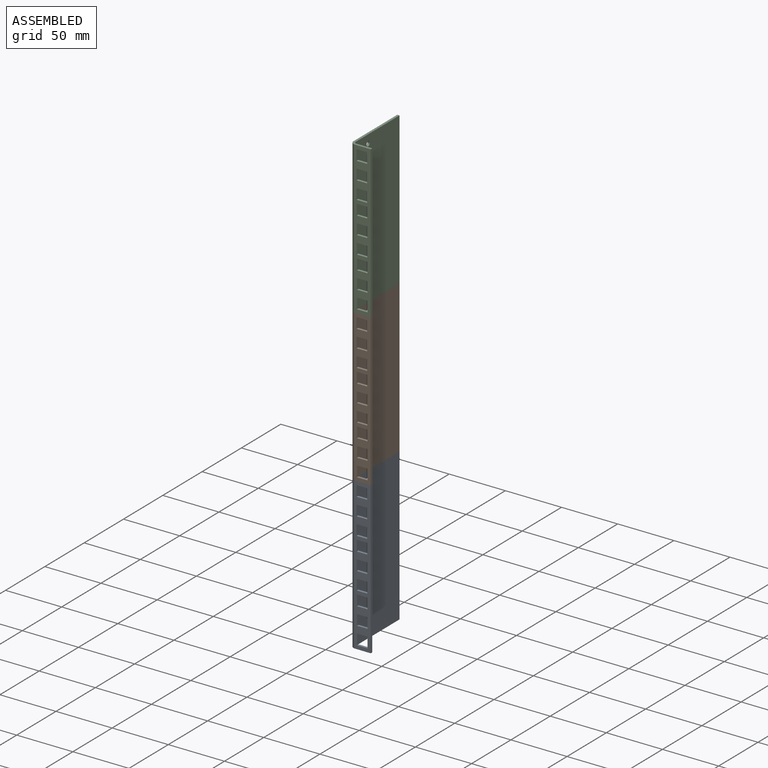
[diagram: assembled view]
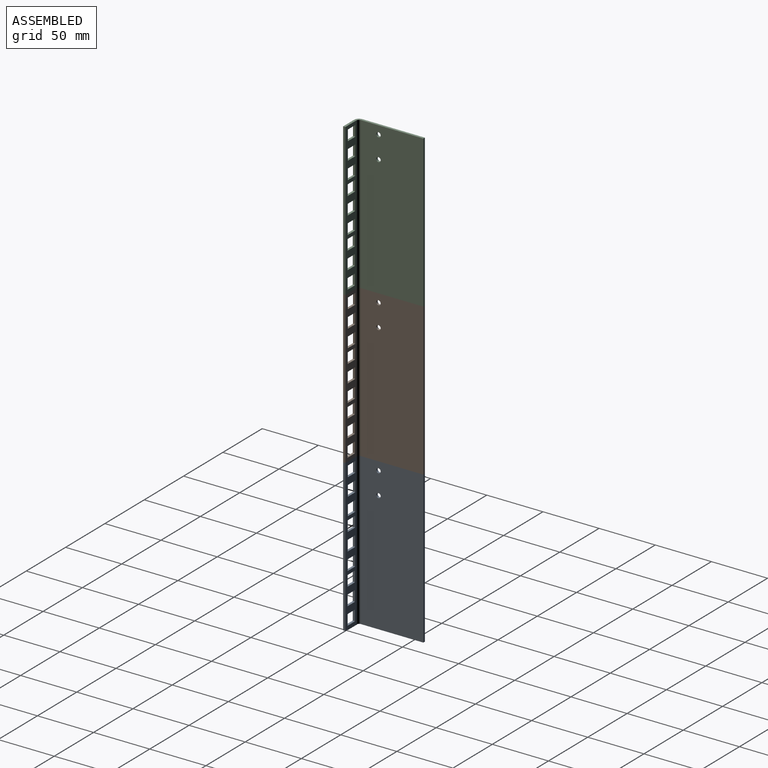
[diagram: assembled view, second angle]
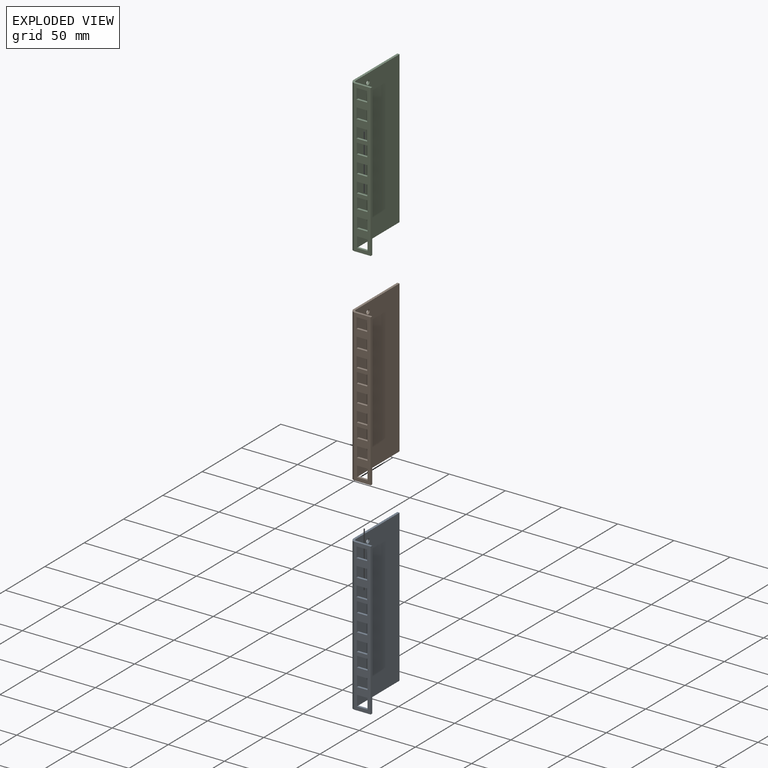
[diagram: exploded view]
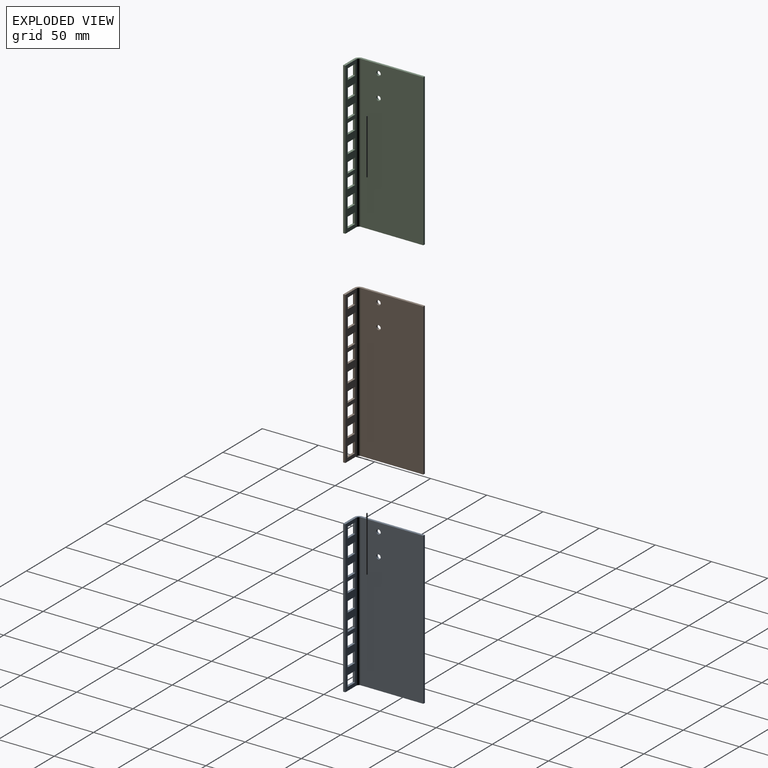
[diagram: exploded view, second angle]
ASSEMBLY  parts=3 mates=2
PART A: 52 faces, bbox 18.3x60x135.2 mm
  f0: plane 55.7x2mm, normal (0,0,-1), area 111.4mm2, adj f4,f5,f6,f48
  f1: plane 55.7x2mm, normal (0,0,1), area 111.4mm2, adj f4,f5,f6,f49
  f2: cylinder r=2mm len=4mm, axis (1,0,0), area 25.1mm2, adj f5,f6
  f3: cylinder r=2mm len=4mm, axis (1,0,0), area 25.1mm2, adj f5,f6
  f4: plane 135.2x2mm, normal (0,1,0), area 270.4mm2, adj f0,f1,f5,f6
  f5: plane 135.2x55.7mm, normal (-1,0,0), area 7505.5mm2, adj f0,f1,f2,f3,f4,f50
  f6: plane 135.2x55.7mm, normal (1,0,0), area 7505.5mm2, adj f0,f1,f2,f3,f4,f51
  f7: plane 9.4x2mm, normal (0,0,1), area 18.8mm2, adj f8,f45,f46,f47
  f8: plane 9.4x2mm, normal (1,0,0), area 18.8mm2, adj f7,f9,f46,f47
  f9: plane 9.4x2mm, normal (0,0,-1), area 18.8mm2, adj f8,f45,f46,f47
  f10: plane 9.4x2mm, normal (0,0,-1), area 18.8mm2, adj f11,f44,f46,f47
  f11: plane 9.4x2mm, normal (-1,0,0), area 18.8mm2, adj f10,f12,f46,f47
  f12: plane 9.4x2mm, normal (0,0,1), area 18.8mm2, adj f11,f44,f46,f47
  f13: plane 9.4x2mm, normal (0,0,-1), area 18.8mm2, adj f14,f43,f46,f47
  f14: plane 9.4x2mm, normal (-1,0,0), area 18.8mm2, adj f13,f15,f46,f47
  f15: plane 9.4x2mm, normal (0,0,1), area 18.8mm2, adj f14,f43,f46,f47
  f16: plane 9.4x2mm, normal (0,0,-1), area 18.8mm2, adj f17,f42,f46,f47
  f17: plane 9.4x2mm, normal (-1,0,0), area 18.8mm2, adj f16,f18,f46,f47
  f18: plane 9.4x2mm, normal (0,0,1), area 18.8mm2, adj f17,f42,f46,f47
  f19: plane 9.4x2mm, normal (0,0,1), area 18.8mm2, adj f20,f41,f46,f47
  f20: plane 9.4x2mm, normal (1,0,0), area 18.8mm2, adj f19,f21,f46,f47
  f21: plane 9.4x2mm, normal (0,0,-1), area 18.8mm2, adj f20,f41,f46,f47
  f22: plane 9.4x2mm, normal (0,0,-1), area 18.8mm2, adj f23,f40,f46,f47
  f23: plane 9.4x2mm, normal (-1,0,0), area 18.8mm2, adj f22,f24,f46,f47
  f24: plane 9.4x2mm, normal (0,0,1), area 18.8mm2, adj f23,f40,f46,f47
  f25: plane 9.4x2mm, normal (0,0,-1), area 18.8mm2, adj f26,f39,f46,f47
  f26: plane 9.4x2mm, normal (-1,0,0), area 18.8mm2, adj f25,f27,f46,f47
  f27: plane 9.4x2mm, normal (0,0,1), area 18.8mm2, adj f26,f39,f46,f47
  f28: plane 9.4x2mm, normal (0,0,-1), area 18.8mm2, adj f29,f38,f46,f47
  f29: plane 9.4x2mm, normal (-1,0,0), area 18.8mm2, adj f28,f30,f46,f47
  f30: plane 9.4x2mm, normal (0,0,1), area 18.8mm2, adj f29,f38,f46,f47
  f31: plane 9.4x2mm, normal (0,0,-1), area 18.8mm2, adj f32,f37,f46,f47
  f32: plane 9.4x2mm, normal (-1,0,0), area 18.8mm2, adj f31,f33,f46,f47
  f33: plane 9.4x2mm, normal (0,0,1), area 18.8mm2, adj f32,f37,f46,f47
  f34: plane 135.2x2mm, normal (1,0,0), area 270.4mm2, adj f35,f36,f46,f47
  f35: plane 14x2mm, normal (0,0,1), area 28mm2, adj f34,f46,f47,f49
  f36: plane 14x2mm, normal (0,0,-1), area 28mm2, adj f34,f46,f47,f48
  f37: plane 9.4x2mm, normal (1,0,0), area 18.8mm2, adj f31,f33,f46,f47
  f38: plane 9.4x2mm, normal (1,0,0), area 18.8mm2, adj f28,f30,f46,f47
  f39: plane 9.4x2mm, normal (1,0,0), area 18.8mm2, adj f25,f27,f46,f47
  f40: plane 9.4x2mm, normal (1,0,0), area 18.8mm2, adj f22,f24,f46,f47
  f41: plane 9.4x2mm, normal (-1,0,0), area 18.8mm2, adj f19,f21,f46,f47
  f42: plane 9.4x2mm, normal (1,0,0), area 18.8mm2, adj f16,f18,f46,f47
  f43: plane 9.4x2mm, normal (1,0,0), area 18.8mm2, adj f13,f15,f46,f47
  f44: plane 9.4x2mm, normal (1,0,0), area 18.8mm2, adj f10,f12,f46,f47
  f45: plane 9.4x2mm, normal (-1,0,0), area 18.8mm2, adj f7,f9,f46,f47
  f46: plane 135.2x14mm, normal (0,-1,0), area 1097.6mm2, adj f7,f8,f9,f10,f11,f12,f13,f14
  f47: plane 135.2x14mm, normal (0,1,0), area 1097.6mm2, adj f7,f8,f9,f10,f11,f12,f13,f14
  f48: plane 4.3x4.3mm, normal (0,0,-1), area 10.4mm2, adj f0,f36,f50,f51
  f49: plane 4.3x4.3mm, normal (0,0,1), area 10.4mm2, adj f1,f35,f50,f51
  f50: cylinder r=4.3mm len=135.2mm, axis (0,0,-1), area 913.2mm2, adj f5,f46,f48,f49
  f51: cylinder r=2.3mm len=135.2mm, axis (0,0,-1), area 488.5mm2, adj f6,f47,f48,f49
PART B: same geometry as A
PART C: same geometry as A
PLACE A t=(-69.53,97.33,-306.06)mm
PLACE B t=(-69.53,97.33,-170.86)mm
PLACE C t=(-69.53,97.33,-35.66)mm
MATE fastened A.f1 <-> B.f0  axis (0,0,1) through (-69.53,126.33,-238.46)mm
MATE fastened B.f1 <-> C.f0  axis (0,0,1) through (-69.53,126.33,-103.26)mm
